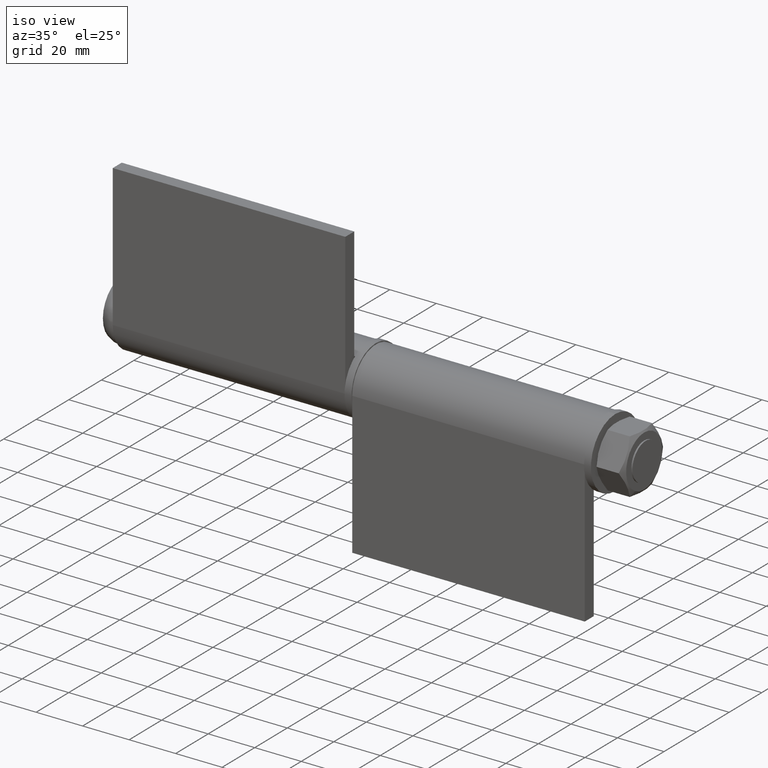
[diagram: clean part render]
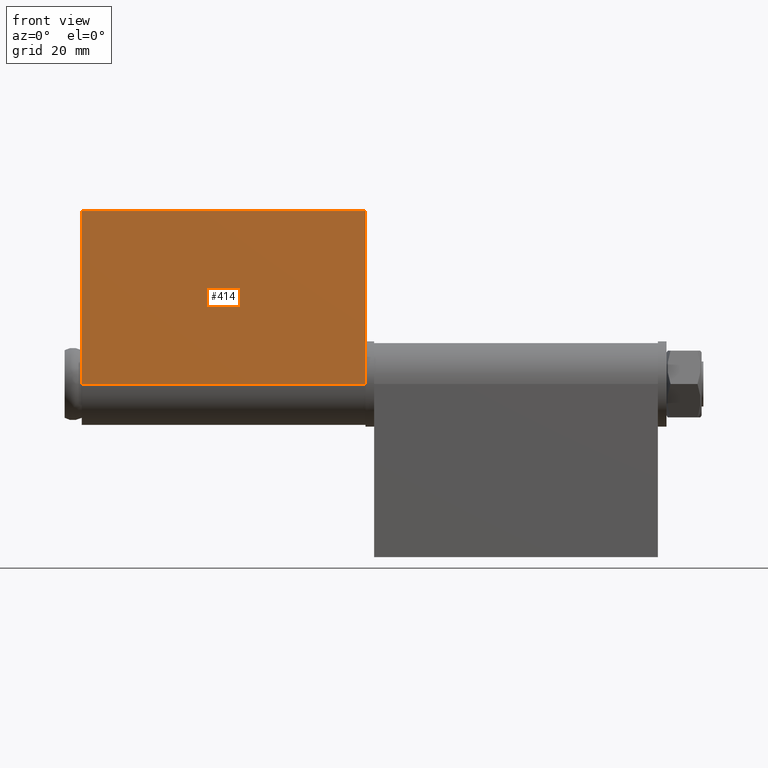
[diagram: tour spotlight — one face highlighted and labeled with its STEP entity id]
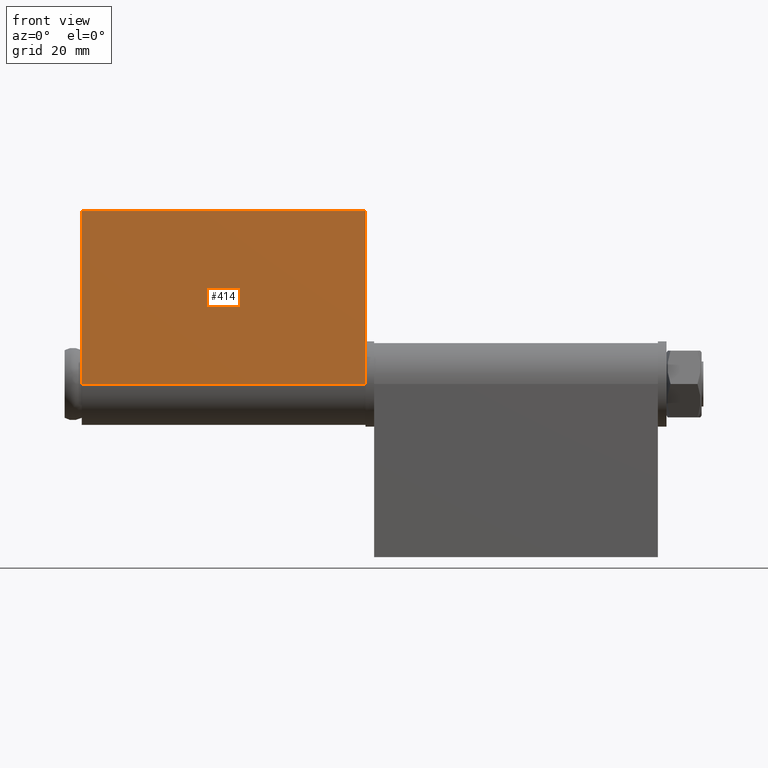
[diagram: tour spotlight — one face highlighted and labeled with its STEP entity id]
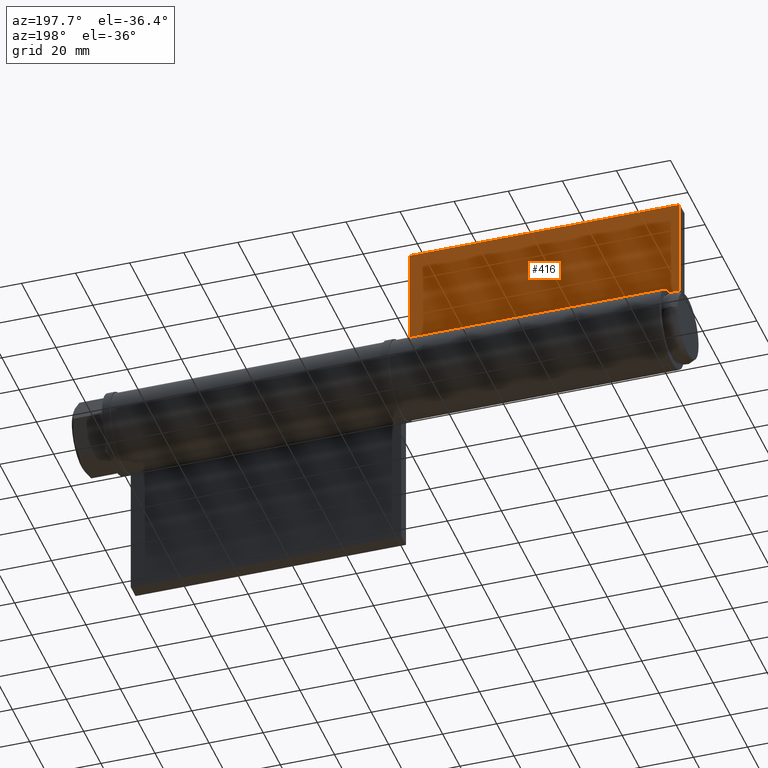
[diagram: tour spotlight — one face highlighted and labeled with its STEP entity id]
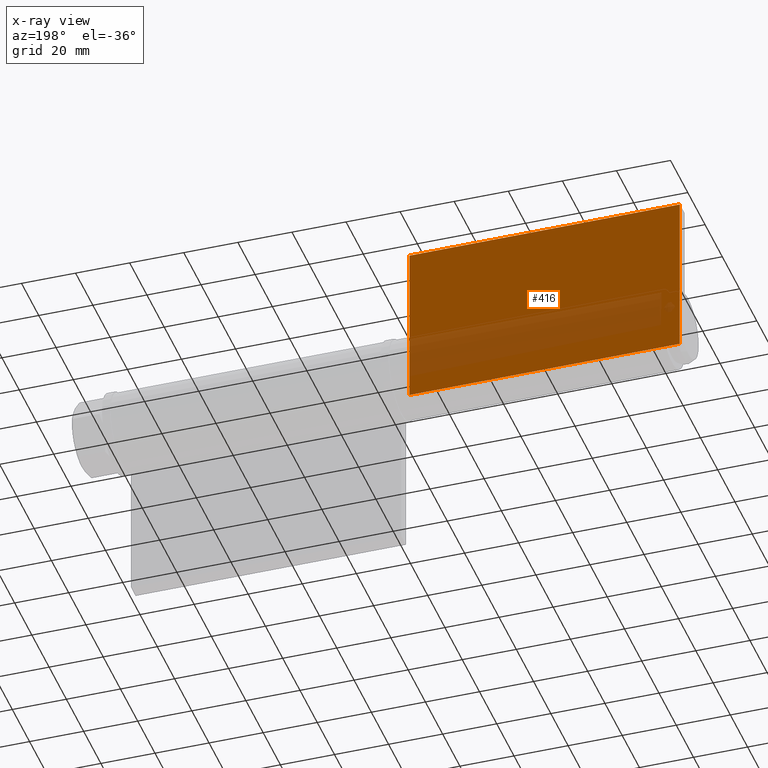
[diagram: x-ray of the same camera — body ghosted, this tour face saturated]
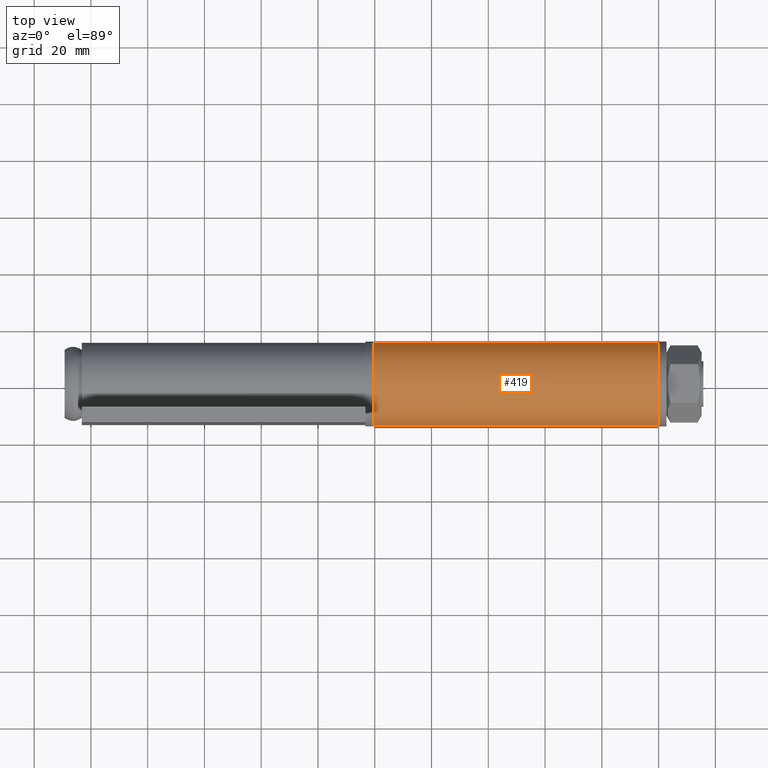
[diagram: tour spotlight — one face highlighted and labeled with its STEP entity id]
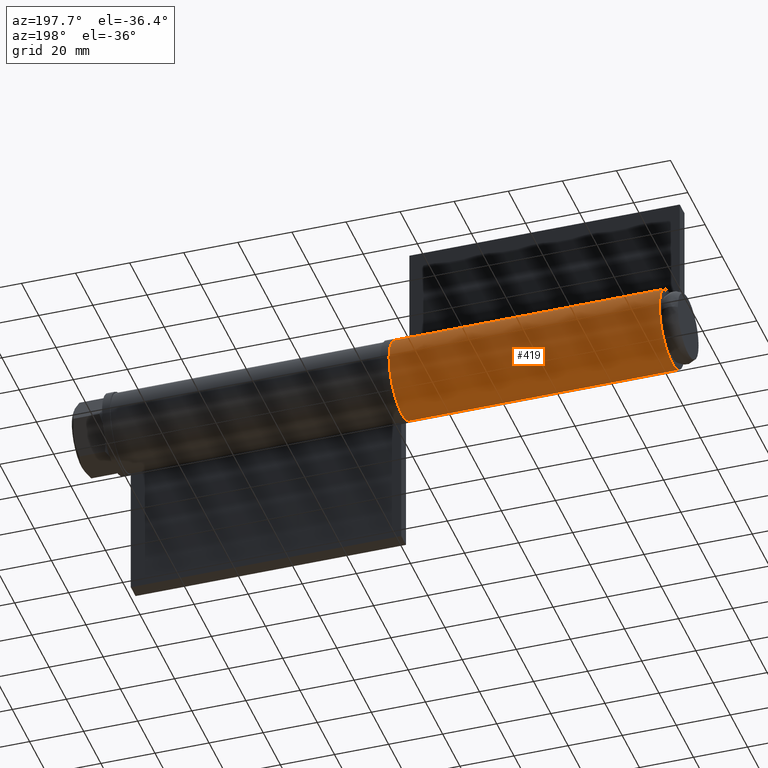
[diagram: tour spotlight — one face highlighted and labeled with its STEP entity id]
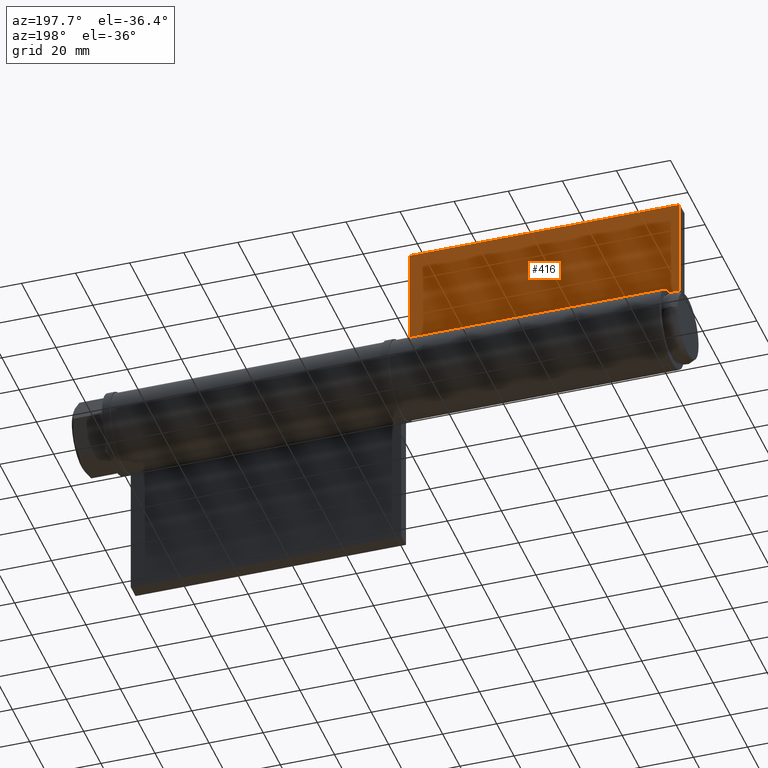
[diagram: tour spotlight — one face highlighted and labeled with its STEP entity id]
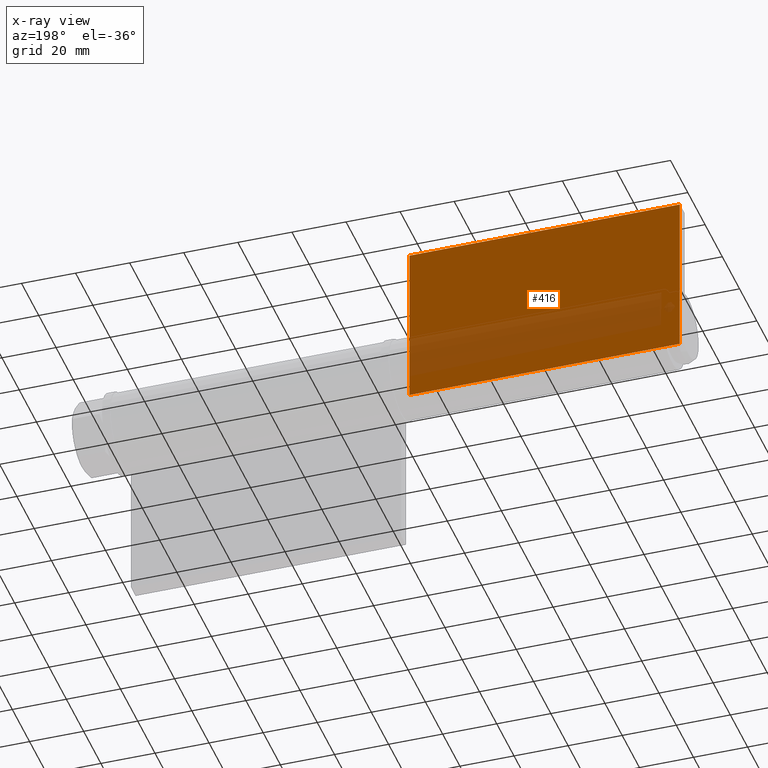
[diagram: x-ray of the same camera — body ghosted, this tour face saturated]
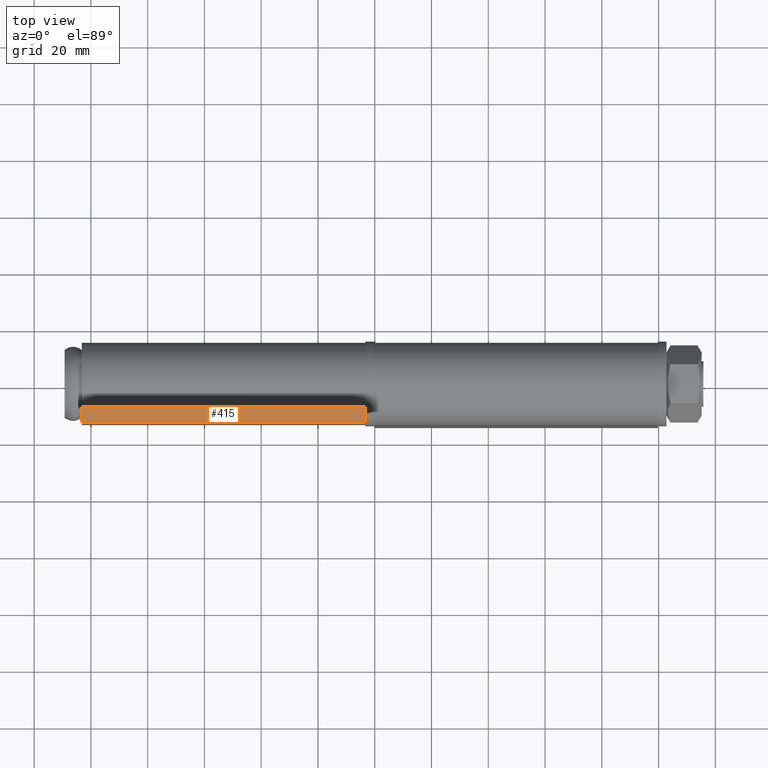
[diagram: tour spotlight — one face highlighted and labeled with its STEP entity id]
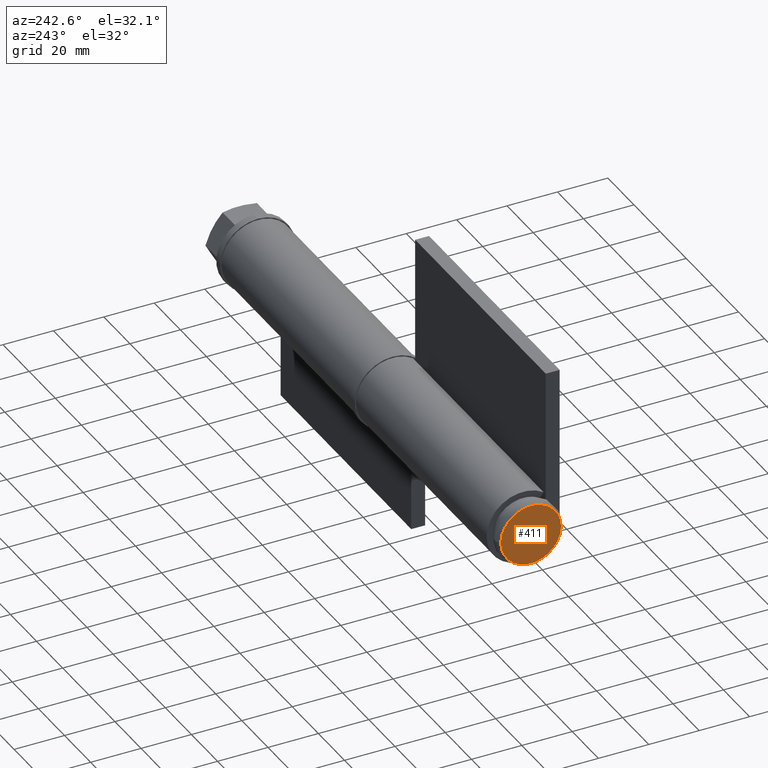
[diagram: tour spotlight — one face highlighted and labeled with its STEP entity id]
A machine part: a face-by-face anatomy tour. The part has 40 B-rep faces; the first image is the clean iso view, then the 8 largest visible faces are spotlighted one at a time (largest first), each with its STEP entity span.

Face 1 — front view, entity #414. In plain terms, the highlighted planar face has unit normal (0, -1, 0).
Definition (entity closure, byte-faithful):
#49=LINE('',#718,#69);
#50=LINE('',#720,#70);
#51=LINE('',#722,#71);
#52=LINE('',#723,#72);
#69=VECTOR('',#517,61.);
#70=VECTOR('',#518,100.);
#71=VECTOR('',#519,61.);
#72=VECTOR('',#520,100.);
#129=FACE_OUTER_BOUND('',#159,.T.);
#159=EDGE_LOOP('',(#302,#303,#304,#305));
#211=VERTEX_POINT('',#716);
#212=VERTEX_POINT('',#717);
#213=VERTEX_POINT('',#719);
#214=VERTEX_POINT('',#721);
#248=EDGE_CURVE('',#211,#212,#49,.T.);
#249=EDGE_CURVE('',#213,#212,#50,.T.);
#250=EDGE_CURVE('',#213,#214,#51,.T.);
#251=EDGE_CURVE('',#214,#211,#52,.T.);
#302=ORIENTED_EDGE('',*,*,#248,.T.);
#303=ORIENTED_EDGE('',*,*,#249,.F.);
#304=ORIENTED_EDGE('',*,*,#250,.T.);
#305=ORIENTED_EDGE('',*,*,#251,.T.);
#393=PLANE('',#451);
#414=ADVANCED_FACE('',(#129),#393,.T.);
#451=AXIS2_PLACEMENT_3D('',#715,#515,#516);
#515=DIRECTION('center_axis',(1.09202264717229E-16,-1.,0.));
#516=DIRECTION('ref_axis',(0.,0.,-1.));
#517=DIRECTION('',(-1.,-1.09202264717229E-16,0.));
#518=DIRECTION('',(0.,0.,1.));
#519=DIRECTION('',(1.,1.09202264717229E-16,0.));
#520=DIRECTION('',(0.,0.,1.));
#715=CARTESIAN_POINT('Origin',(0.,0.,0.));
#716=CARTESIAN_POINT('',(0.,0.,100.));
#717=CARTESIAN_POINT('',(-61.,-6.66133814775094E-15,100.));
#718=CARTESIAN_POINT('',(-61.,-6.66133814775094E-15,100.));
#719=CARTESIAN_POINT('',(-61.,-6.66133814775094E-15,0.));
#720=CARTESIAN_POINT('',(-61.,-6.66133814775094E-15,0.));
#721=CARTESIAN_POINT('',(0.,0.,0.));
#722=CARTESIAN_POINT('',(-61.,-6.66133814775094E-15,0.));
#723=CARTESIAN_POINT('',(0.,0.,0.));

Face 2 — front view, entity #414. In plain terms, the highlighted planar face has unit normal (0, -1, -0).
Definition (entity closure, byte-faithful):
#49=LINE('',#718,#69);
#50=LINE('',#720,#70);
#51=LINE('',#722,#71);
#52=LINE('',#723,#72);
#69=VECTOR('',#517,61.);
#70=VECTOR('',#518,100.);
#71=VECTOR('',#519,61.);
#72=VECTOR('',#520,100.);
#129=FACE_OUTER_BOUND('',#159,.T.);
#159=EDGE_LOOP('',(#302,#303,#304,#305));
#211=VERTEX_POINT('',#716);
#212=VERTEX_POINT('',#717);
#213=VERTEX_POINT('',#719);
#214=VERTEX_POINT('',#721);
#248=EDGE_CURVE('',#211,#212,#49,.T.);
#249=EDGE_CURVE('',#213,#212,#50,.T.);
#250=EDGE_CURVE('',#213,#214,#51,.T.);
#251=EDGE_CURVE('',#214,#211,#52,.T.);
#302=ORIENTED_EDGE('',*,*,#248,.T.);
#303=ORIENTED_EDGE('',*,*,#249,.F.);
#304=ORIENTED_EDGE('',*,*,#250,.T.);
#305=ORIENTED_EDGE('',*,*,#251,.T.);
#393=PLANE('',#451);
#414=ADVANCED_FACE('',(#129),#393,.T.);
#451=AXIS2_PLACEMENT_3D('',#715,#515,#516);
#515=DIRECTION('center_axis',(1.09202264717229E-16,-1.,0.));
#516=DIRECTION('ref_axis',(0.,0.,-1.));
#517=DIRECTION('',(-1.,-1.09202264717229E-16,0.));
#518=DIRECTION('',(0.,0.,1.));
#519=DIRECTION('',(1.,1.09202264717229E-16,0.));
#520=DIRECTION('',(0.,0.,1.));
#715=CARTESIAN_POINT('Origin',(0.,0.,0.));
#716=CARTESIAN_POINT('',(0.,0.,100.));
#717=CARTESIAN_POINT('',(-61.,-6.66133814775094E-15,100.));
#718=CARTESIAN_POINT('',(-61.,-6.66133814775094E-15,100.));
#719=CARTESIAN_POINT('',(-61.,-6.66133814775094E-15,0.));
#720=CARTESIAN_POINT('',(-61.,-6.66133814775094E-15,0.));
#721=CARTESIAN_POINT('',(0.,0.,0.));
#722=CARTESIAN_POINT('',(-61.,-6.66133814775094E-15,0.));
#723=CARTESIAN_POINT('',(0.,0.,0.));

Face 3 — auxiliary view, entity #416. An x-ray twin of the same camera follows (body ghosted, this face saturated) — the face is partly hidden behind the body. In plain terms, the highlighted planar face has unit normal (-0, 1, -0).
Definition (entity closure, byte-faithful):
#54=LINE('',#728,#74);
#56=LINE('',#732,#76);
#57=LINE('',#734,#77);
#58=LINE('',#735,#78);
#74=VECTOR('',#524,100.);
#76=VECTOR('',#528,61.);
#77=VECTOR('',#529,100.);
#78=VECTOR('',#530,61.);
#131=FACE_OUTER_BOUND('',#161,.T.);
#161=EDGE_LOOP('',(#310,#311,#312,#313));
#215=VERTEX_POINT('',#725);
#216=VERTEX_POINT('',#727);
#217=VERTEX_POINT('',#731);
#218=VERTEX_POINT('',#733);
#253=EDGE_CURVE('',#216,#215,#54,.T.);
#255=EDGE_CURVE('',#215,#217,#56,.T.);
#256=EDGE_CURVE('',#218,#217,#57,.T.);
#257=EDGE_CURVE('',#218,#216,#58,.T.);
#310=ORIENTED_EDGE('',*,*,#255,.T.);
#311=ORIENTED_EDGE('',*,*,#256,.F.);
#312=ORIENTED_EDGE('',*,*,#257,.T.);
#313=ORIENTED_EDGE('',*,*,#253,.T.);
#395=PLANE('',#453);
#416=ADVANCED_FACE('',(#131),#395,.T.);
#453=AXIS2_PLACEMENT_3D('',#730,#526,#527);
#524=DIRECTION('',(0.,0.,1.));
#526=DIRECTION('center_axis',(-2.18404529434457E-16,1.,0.));
#527=DIRECTION('ref_axis',(0.,0.,1.));
#528=DIRECTION('',(1.,2.18404529434457E-16,0.));
#529=DIRECTION('',(0.,0.,1.));
#530=DIRECTION('',(-1.,-2.18404529434457E-16,0.));
#725=CARTESIAN_POINT('',(-61.,5.49999999999999,100.));
#727=CARTESIAN_POINT('',(-61.,5.49999999999999,0.));
#728=CARTESIAN_POINT('',(-61.,5.49999999999999,0.));
#730=CARTESIAN_POINT('Origin',(-61.,5.49999999999999,0.));
#731=CARTESIAN_POINT('',(4.63263002376526E-16,5.50000000000001,100.));
#732=CARTESIAN_POINT('',(0.,5.50000000000001,100.));
#733=CARTESIAN_POINT('',(4.63263002376526E-16,5.50000000000001,0.));
#734=CARTESIAN_POINT('',(4.63263002376526E-16,5.50000000000001,0.));
#735=CARTESIAN_POINT('',(0.,5.50000000000001,0.));

Face 4 — top view, entity #419. In plain terms, the highlighted cylindrical surface (partial cylindrical patch) has radius 14.5 mm, axis along (-1, -0, -0).
Definition (entity closure, byte-faithful):
#52=LINE('',#723,#72);
#61=LINE('',#746,#81);
#72=VECTOR('',#520,100.);
#81=VECTOR('',#541,100.);
#107=CYLINDRICAL_SURFACE('',#458,14.5);
#134=FACE_OUTER_BOUND('',#164,.T.);
#164=EDGE_LOOP('',(#322,#323,#324,#325));
#197=CIRCLE('',#459,14.5);
#198=CIRCLE('',#460,14.5);
#211=VERTEX_POINT('',#716);
#214=VERTEX_POINT('',#721);
#221=VERTEX_POINT('',#743);
#222=VERTEX_POINT('',#745);
#251=EDGE_CURVE('',#214,#211,#52,.T.);
#262=EDGE_CURVE('',#222,#221,#61,.T.);
#264=EDGE_CURVE('',#221,#211,#197,.T.);
#265=EDGE_CURVE('',#214,#222,#198,.T.);
#322=ORIENTED_EDGE('',*,*,#264,.T.);
#323=ORIENTED_EDGE('',*,*,#251,.F.);
#324=ORIENTED_EDGE('',*,*,#265,.T.);
#325=ORIENTED_EDGE('',*,*,#262,.T.);
#419=ADVANCED_FACE('',(#134),#107,.T.);
#458=AXIS2_PLACEMENT_3D('',#748,#543,#544);
#459=AXIS2_PLACEMENT_3D('',#749,#545,#546);
#460=AXIS2_PLACEMENT_3D('',#750,#547,#548);
#520=DIRECTION('',(0.,0.,1.));
#541=DIRECTION('',(0.,0.,1.));
#543=DIRECTION('center_axis',(0.,0.,1.));
#544=DIRECTION('ref_axis',(1.22464679914735E-16,-1.,0.));
#545=DIRECTION('center_axis',(0.,0.,-1.));
#546=DIRECTION('ref_axis',(1.22464679914735E-16,-1.,0.));
#547=DIRECTION('center_axis',(0.,0.,1.));
#548=DIRECTION('ref_axis',(1.22464679914735E-16,-1.,0.));
#716=CARTESIAN_POINT('',(0.,0.,100.));
#721=CARTESIAN_POINT('',(0.,0.,0.));
#723=CARTESIAN_POINT('',(0.,0.,0.));
#743=CARTESIAN_POINT('',(-12.0297585688031,6.40463658775539,100.));
#745=CARTESIAN_POINT('',(-12.0297585688031,6.40463658775539,0.));
#746=CARTESIAN_POINT('',(-12.0297585688031,6.40463658775539,0.));
#748=CARTESIAN_POINT('Origin',(-1.77573785876366E-15,14.5,0.));
#749=CARTESIAN_POINT('Origin',(-1.77573785876366E-15,14.5,100.));
#750=CARTESIAN_POINT('Origin',(-1.77573785876366E-15,14.5,0.));

Face 5 — auxiliary view, entity #419. In plain terms, the highlighted cylindrical surface (partial cylindrical patch) has radius 14.5 mm, axis along (1, 0, -0).
Definition (entity closure, byte-faithful):
#52=LINE('',#723,#72);
#61=LINE('',#746,#81);
#72=VECTOR('',#520,100.);
#81=VECTOR('',#541,100.);
#107=CYLINDRICAL_SURFACE('',#458,14.5);
#134=FACE_OUTER_BOUND('',#164,.T.);
#164=EDGE_LOOP('',(#322,#323,#324,#325));
#197=CIRCLE('',#459,14.5);
#198=CIRCLE('',#460,14.5);
#211=VERTEX_POINT('',#716);
#214=VERTEX_POINT('',#721);
#221=VERTEX_POINT('',#743);
#222=VERTEX_POINT('',#745);
#251=EDGE_CURVE('',#214,#211,#52,.T.);
#262=EDGE_CURVE('',#222,#221,#61,.T.);
#264=EDGE_CURVE('',#221,#211,#197,.T.);
#265=EDGE_CURVE('',#214,#222,#198,.T.);
#322=ORIENTED_EDGE('',*,*,#264,.T.);
#323=ORIENTED_EDGE('',*,*,#251,.F.);
#324=ORIENTED_EDGE('',*,*,#265,.T.);
#325=ORIENTED_EDGE('',*,*,#262,.T.);
#419=ADVANCED_FACE('',(#134),#107,.T.);
#458=AXIS2_PLACEMENT_3D('',#748,#543,#544);
#459=AXIS2_PLACEMENT_3D('',#749,#545,#546);
#460=AXIS2_PLACEMENT_3D('',#750,#547,#548);
#520=DIRECTION('',(0.,0.,1.));
#541=DIRECTION('',(0.,0.,1.));
#543=DIRECTION('center_axis',(0.,0.,1.));
#544=DIRECTION('ref_axis',(1.22464679914735E-16,-1.,0.));
#545=DIRECTION('center_axis',(0.,0.,-1.));
#546=DIRECTION('ref_axis',(1.22464679914735E-16,-1.,0.));
#547=DIRECTION('center_axis',(0.,0.,1.));
#548=DIRECTION('ref_axis',(1.22464679914735E-16,-1.,0.));
#716=CARTESIAN_POINT('',(0.,0.,100.));
#721=CARTESIAN_POINT('',(0.,0.,0.));
#723=CARTESIAN_POINT('',(0.,0.,0.));
#743=CARTESIAN_POINT('',(-12.0297585688031,6.40463658775539,100.));
#745=CARTESIAN_POINT('',(-12.0297585688031,6.40463658775539,0.));
#746=CARTESIAN_POINT('',(-12.0297585688031,6.40463658775539,0.));
#748=CARTESIAN_POINT('Origin',(-1.77573785876366E-15,14.5,0.));
#749=CARTESIAN_POINT('Origin',(-1.77573785876366E-15,14.5,100.));
#750=CARTESIAN_POINT('Origin',(-1.77573785876366E-15,14.5,0.));

Face 6 — auxiliary view, entity #416. An x-ray twin of the same camera follows (body ghosted, this face saturated) — the face is partly hidden behind the body. In plain terms, the highlighted planar face has unit normal (-0, 1, 0).
Definition (entity closure, byte-faithful):
#54=LINE('',#728,#74);
#56=LINE('',#732,#76);
#57=LINE('',#734,#77);
#58=LINE('',#735,#78);
#74=VECTOR('',#524,100.);
#76=VECTOR('',#528,61.);
#77=VECTOR('',#529,100.);
#78=VECTOR('',#530,61.);
#131=FACE_OUTER_BOUND('',#161,.T.);
#161=EDGE_LOOP('',(#310,#311,#312,#313));
#215=VERTEX_POINT('',#725);
#216=VERTEX_POINT('',#727);
#217=VERTEX_POINT('',#731);
#218=VERTEX_POINT('',#733);
#253=EDGE_CURVE('',#216,#215,#54,.T.);
#255=EDGE_CURVE('',#215,#217,#56,.T.);
#256=EDGE_CURVE('',#218,#217,#57,.T.);
#257=EDGE_CURVE('',#218,#216,#58,.T.);
#310=ORIENTED_EDGE('',*,*,#255,.T.);
#311=ORIENTED_EDGE('',*,*,#256,.F.);
#312=ORIENTED_EDGE('',*,*,#257,.T.);
#313=ORIENTED_EDGE('',*,*,#253,.T.);
#395=PLANE('',#453);
#416=ADVANCED_FACE('',(#131),#395,.T.);
#453=AXIS2_PLACEMENT_3D('',#730,#526,#527);
#524=DIRECTION('',(0.,0.,1.));
#526=DIRECTION('center_axis',(-2.18404529434457E-16,1.,0.));
#527=DIRECTION('ref_axis',(0.,0.,1.));
#528=DIRECTION('',(1.,2.18404529434457E-16,0.));
#529=DIRECTION('',(0.,0.,1.));
#530=DIRECTION('',(-1.,-2.18404529434457E-16,0.));
#725=CARTESIAN_POINT('',(-61.,5.49999999999999,100.));
#727=CARTESIAN_POINT('',(-61.,5.49999999999999,0.));
#728=CARTESIAN_POINT('',(-61.,5.49999999999999,0.));
#730=CARTESIAN_POINT('Origin',(-61.,5.49999999999999,0.));
#731=CARTESIAN_POINT('',(4.63263002376526E-16,5.50000000000001,100.));
#732=CARTESIAN_POINT('',(0.,5.50000000000001,100.));
#733=CARTESIAN_POINT('',(4.63263002376526E-16,5.50000000000001,0.));
#734=CARTESIAN_POINT('',(4.63263002376526E-16,5.50000000000001,0.));
#735=CARTESIAN_POINT('',(0.,5.50000000000001,0.));

Face 7 — top view, entity #415. In plain terms, the highlighted planar face has unit normal (0, -0, 1).
Definition (entity closure, byte-faithful):
#50=LINE('',#720,#70);
#53=LINE('',#726,#73);
#54=LINE('',#728,#74);
#55=LINE('',#729,#75);
#70=VECTOR('',#518,100.);
#73=VECTOR('',#523,5.5);
#74=VECTOR('',#524,100.);
#75=VECTOR('',#525,5.5);
#130=FACE_OUTER_BOUND('',#160,.T.);
#160=EDGE_LOOP('',(#306,#307,#308,#309));
#212=VERTEX_POINT('',#717);
#213=VERTEX_POINT('',#719);
#215=VERTEX_POINT('',#725);
#216=VERTEX_POINT('',#727);
#249=EDGE_CURVE('',#213,#212,#50,.T.);
#252=EDGE_CURVE('',#212,#215,#53,.T.);
#253=EDGE_CURVE('',#216,#215,#54,.T.);
#254=EDGE_CURVE('',#216,#213,#55,.T.);
#306=ORIENTED_EDGE('',*,*,#252,.T.);
#307=ORIENTED_EDGE('',*,*,#253,.F.);
#308=ORIENTED_EDGE('',*,*,#254,.T.);
#309=ORIENTED_EDGE('',*,*,#249,.T.);
#394=PLANE('',#452);
#415=ADVANCED_FACE('',(#130),#394,.T.);
#452=AXIS2_PLACEMENT_3D('',#724,#521,#522);
#518=DIRECTION('',(0.,0.,1.));
#521=DIRECTION('center_axis',(-1.,0.,0.));
#522=DIRECTION('ref_axis',(0.,0.,1.));
#523=DIRECTION('',(0.,1.,0.));
#524=DIRECTION('',(0.,0.,1.));
#525=DIRECTION('',(0.,-1.,0.));
#717=CARTESIAN_POINT('',(-61.,-6.66133814775094E-15,100.));
#719=CARTESIAN_POINT('',(-61.,-6.66133814775094E-15,0.));
#720=CARTESIAN_POINT('',(-61.,-6.66133814775094E-15,0.));
#724=CARTESIAN_POINT('Origin',(-61.,-6.66133814775094E-15,0.));
#725=CARTESIAN_POINT('',(-61.,5.49999999999999,100.));
#726=CARTESIAN_POINT('',(-61.,5.49999999999999,100.));
#727=CARTESIAN_POINT('',(-61.,5.49999999999999,0.));
#728=CARTESIAN_POINT('',(-61.,5.49999999999999,0.));
#729=CARTESIAN_POINT('',(-61.,5.49999999999999,0.));

Face 8 — auxiliary view, entity #411. In plain terms, the highlighted planar face has unit normal (-1, 0, 0).
Definition (entity closure, byte-faithful):
#126=FACE_OUTER_BOUND('',#155,.T.);
#155=EDGE_LOOP('',(#298));
#193=CIRCLE('',#445,12.);
#209=VERTEX_POINT('',#701);
#245=EDGE_CURVE('',#209,#209,#193,.T.);
#298=ORIENTED_EDGE('',*,*,#245,.F.);
#391=PLANE('',#446);
#411=ADVANCED_FACE('',(#126),#391,.T.);
#445=AXIS2_PLACEMENT_3D('',#702,#503,#504);
#446=AXIS2_PLACEMENT_3D('',#709,#505,#506);
#503=DIRECTION('center_axis',(1.,0.,0.));
#504=DIRECTION('ref_axis',(0.,0.,-1.));
#505=DIRECTION('center_axis',(-1.,0.,0.));
#506=DIRECTION('ref_axis',(0.,0.,1.));
#701=CARTESIAN_POINT('',(-112.5,12.,-7.34788079488412E-16));
#702=CARTESIAN_POINT('Origin',(-112.5,-2.06659147356116E-14,0.));
#709=CARTESIAN_POINT('Origin',(-112.5,4.00000000000003,0.));